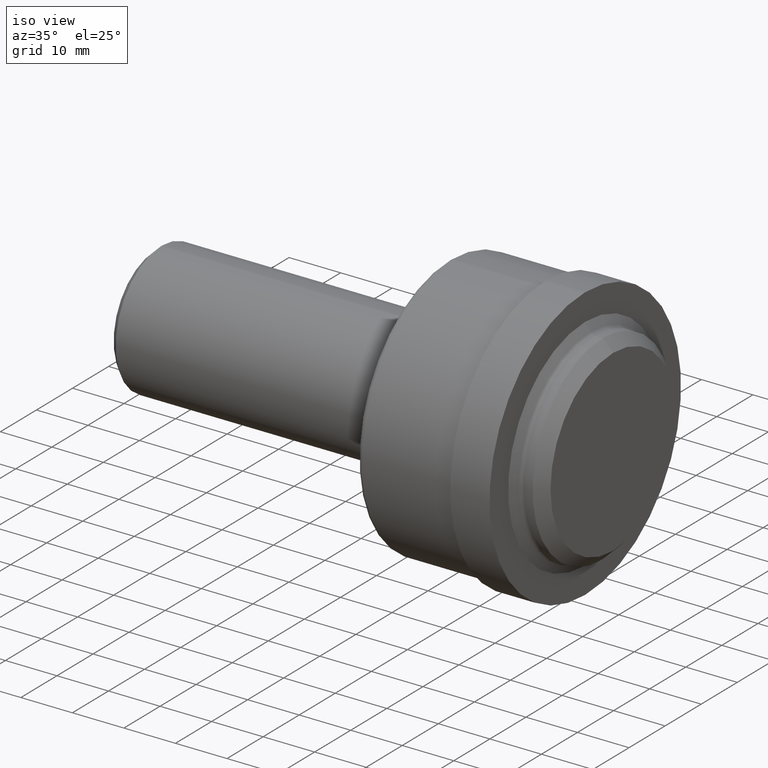
[diagram: clean part render]
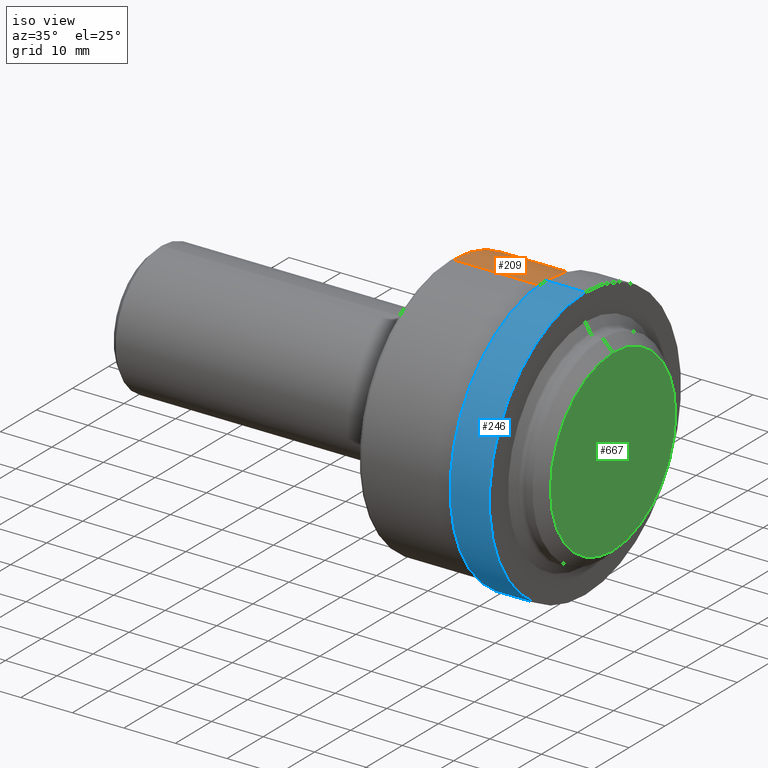
[diagram: same view with three faces highlighted in distinct colors, each labeled with its STEP entity id]
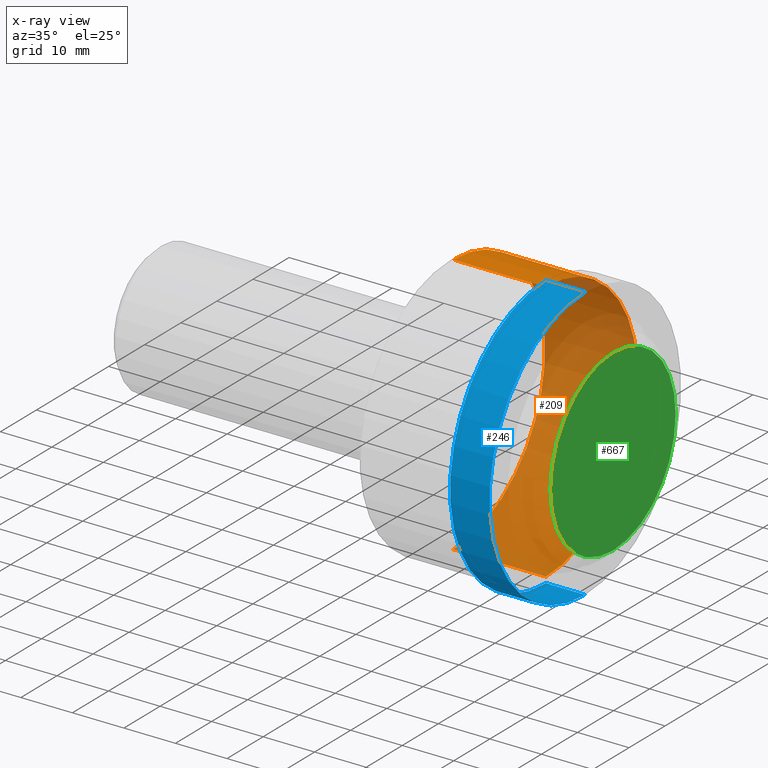
[diagram: x-ray of the same camera — body ghosted, the three highlighted faces saturated]
A machine part, iso view with three faces highlighted in distinct colors.
The next image is the same camera in x-ray (body ghosted, the three faces saturated) — at least one of them is partly hidden behind the body in this view.
Their STEP definitions:

[orange] entity #209 — the highlighted cylindrical surface (partial cylindrical patch) has radius 25.4 mm, axis along (-1, -0, -0).
#30 = DIRECTION ( 'NONE',  ( -1.000000000000000000, -0.000000000000000000, -0.000000000000000000 ) ) ;
#38 = CARTESIAN_POINT ( 'NONE',  ( 2.279999999999999805, 0.000000000000000000, 0.000000000000000000 ) ) ;
#50 = DIRECTION ( 'NONE',  ( -1.000000000000000000, -0.000000000000000000, -0.000000000000000000 ) ) ;
#90 = EDGE_CURVE ( 'NONE', #625, #474, #484, .T. ) ;
#103 = CARTESIAN_POINT ( 'NONE',  ( 0.000000000000000000, 0.000000000000000000, 0.000000000000000000 ) ) ;
#111 = CARTESIAN_POINT ( 'NONE',  ( 2.986999999999999655, 0.000000000000000000, 1.000000000000000000 ) ) ;
#119 = AXIS2_PLACEMENT_3D ( 'NONE', #384, #546, #333 ) ;
#191 = CARTESIAN_POINT ( 'NONE',  ( 2.986999999999999655, 1.224646799147353207E-16, -1.000000000000000000 ) ) ;
#209 = ADVANCED_FACE ( 'NONE', ( #595 ), #389, .T. ) ;
#240 = ORIENTED_EDGE ( 'NONE', *, *, #664, .T. ) ;
#241 = CIRCLE ( 'NONE', #452, 1.000000000000000000 ) ;
#242 = EDGE_CURVE ( 'NONE', #625, #479, #339, .T. ) ;
#302 = ORIENTED_EDGE ( 'NONE', *, *, #90, .F. ) ;
#326 = DIRECTION ( 'NONE',  ( -1.000000000000000000, -0.000000000000000000, -0.000000000000000000 ) ) ;
#332 = LINE ( 'NONE', #598, #447 ) ;
#333 = DIRECTION ( 'NONE',  ( 0.000000000000000000, 0.000000000000000000, 1.000000000000000000 ) ) ;
#339 = CIRCLE ( 'NONE', #119, 1.000000000000000000 ) ;
#363 = ORIENTED_EDGE ( 'NONE', *, *, #242, .T. ) ;
#384 = CARTESIAN_POINT ( 'NONE',  ( 2.986999999999999655, 0.000000000000000000, 0.000000000000000000 ) ) ;
#389 = CYLINDRICAL_SURFACE ( 'NONE', #465, 1.000000000000000000 ) ;
#415 = CARTESIAN_POINT ( 'NONE',  ( 2.279999999999999805, 0.000000000000000000, 1.000000000000000000 ) ) ;
#447 = VECTOR ( 'NONE', #550, 39.37007874015748143 ) ;
#452 = AXIS2_PLACEMENT_3D ( 'NONE', #38, #50, #717 ) ;
#462 = VECTOR ( 'NONE', #30, 39.37007874015748143 ) ;
#465 = AXIS2_PLACEMENT_3D ( 'NONE', #103, #326, #542 ) ;
#474 = VERTEX_POINT ( 'NONE', #415 ) ;
#479 = VERTEX_POINT ( 'NONE', #191 ) ;
#484 = LINE ( 'NONE', #533, #462 ) ;
#512 = EDGE_LOOP ( 'NONE', ( #363, #240, #679, #302 ) ) ;
#533 = CARTESIAN_POINT ( 'NONE',  ( 0.000000000000000000, 0.000000000000000000, 1.000000000000000000 ) ) ;
#542 = DIRECTION ( 'NONE',  ( 0.000000000000000000, 0.000000000000000000, 1.000000000000000000 ) ) ;
#546 = DIRECTION ( 'NONE',  ( -1.000000000000000000, -0.000000000000000000, -0.000000000000000000 ) ) ;
#550 = DIRECTION ( 'NONE',  ( -1.000000000000000000, -0.000000000000000000, -0.000000000000000000 ) ) ;
#557 = CARTESIAN_POINT ( 'NONE',  ( 2.279999999999999805, 1.224646799147353207E-16, -1.000000000000000000 ) ) ;
#560 = EDGE_CURVE ( 'NONE', #474, #697, #241, .T. ) ;
#595 = FACE_OUTER_BOUND ( 'NONE', #512, .T. ) ;
#598 = CARTESIAN_POINT ( 'NONE',  ( 0.000000000000000000, 1.224646799147353207E-16, -1.000000000000000000 ) ) ;
#625 = VERTEX_POINT ( 'NONE', #111 ) ;
#664 = EDGE_CURVE ( 'NONE', #479, #697, #332, .T. ) ;
#679 = ORIENTED_EDGE ( 'NONE', *, *, #560, .F. ) ;
#697 = VERTEX_POINT ( 'NONE', #557 ) ;
#717 = DIRECTION ( 'NONE',  ( 0.000000000000000000, 0.000000000000000000, 1.000000000000000000 ) ) ;

[blue] entity #246 — the highlighted cylindrical surface (partial cylindrical patch) has radius 26.543 mm, axis along (-1, -0, -0).
#5 = ORIENTED_EDGE ( 'NONE', *, *, #406, .T. ) ;
#19 = EDGE_LOOP ( 'NONE', ( #578, #5, #367, #374 ) ) ;
#26 = DIRECTION ( 'NONE',  ( -1.000000000000000000, -0.000000000000000000, -0.000000000000000000 ) ) ;
#61 = EDGE_CURVE ( 'NONE', #402, #570, #229, .T. ) ;
#81 = VECTOR ( 'NONE', #665, 39.37007874015748143 ) ;
#88 = CARTESIAN_POINT ( 'NONE',  ( 2.986999999999999655, 0.000000000000000000, 0.000000000000000000 ) ) ;
#96 = AXIS2_PLACEMENT_3D ( 'NONE', #496, #715, #463 ) ;
#129 = CARTESIAN_POINT ( 'NONE',  ( 3.286999999999999478, 0.000000000000000000, 0.000000000000000000 ) ) ;
#140 = VERTEX_POINT ( 'NONE', #493 ) ;
#150 = CARTESIAN_POINT ( 'NONE',  ( 0.000000000000000000, 1.279755905108984103E-16, -1.044999999999999929 ) ) ;
#178 = EDGE_CURVE ( 'NONE', #369, #570, #499, .T. ) ;
#222 = CARTESIAN_POINT ( 'NONE',  ( 2.986999999999999655, 0.000000000000000000, 1.044999999999999929 ) ) ;
#229 = CIRCLE ( 'NONE', #328, 1.044999999999999929 ) ;
#237 = DIRECTION ( 'NONE',  ( 0.000000000000000000, 0.000000000000000000, 1.000000000000000000 ) ) ;
#246 = ADVANCED_FACE ( 'NONE', ( #549 ), #274, .T. ) ;
#274 = CYLINDRICAL_SURFACE ( 'NONE', #96, 1.044999999999999929 ) ;
#310 = DIRECTION ( 'NONE',  ( -1.000000000000000000, -0.000000000000000000, -0.000000000000000000 ) ) ;
#328 = AXIS2_PLACEMENT_3D ( 'NONE', #88, #310, #427 ) ;
#334 = CIRCLE ( 'NONE', #347, 1.044999999999999929 ) ;
#347 = AXIS2_PLACEMENT_3D ( 'NONE', #129, #353, #237 ) ;
#353 = DIRECTION ( 'NONE',  ( -1.000000000000000000, -0.000000000000000000, -0.000000000000000000 ) ) ;
#367 = ORIENTED_EDGE ( 'NONE', *, *, #178, .T. ) ;
#369 = VERTEX_POINT ( 'NONE', #566 ) ;
#374 = ORIENTED_EDGE ( 'NONE', *, *, #61, .F. ) ;
#392 = VECTOR ( 'NONE', #26, 39.37007874015748143 ) ;
#402 = VERTEX_POINT ( 'NONE', #568 ) ;
#406 = EDGE_CURVE ( 'NONE', #140, #369, #334, .T. ) ;
#427 = DIRECTION ( 'NONE',  ( 0.000000000000000000, 0.000000000000000000, 1.000000000000000000 ) ) ;
#429 = CARTESIAN_POINT ( 'NONE',  ( 0.000000000000000000, 0.000000000000000000, 1.044999999999999929 ) ) ;
#463 = DIRECTION ( 'NONE',  ( 0.000000000000000000, 0.000000000000000000, 1.000000000000000000 ) ) ;
#468 = LINE ( 'NONE', #150, #392 ) ;
#485 = EDGE_CURVE ( 'NONE', #140, #402, #468, .T. ) ;
#493 = CARTESIAN_POINT ( 'NONE',  ( 3.286999999999999478, 1.279755905108984103E-16, -1.044999999999999929 ) ) ;
#496 = CARTESIAN_POINT ( 'NONE',  ( 0.000000000000000000, 0.000000000000000000, 0.000000000000000000 ) ) ;
#499 = LINE ( 'NONE', #429, #81 ) ;
#549 = FACE_OUTER_BOUND ( 'NONE', #19, .T. ) ;
#566 = CARTESIAN_POINT ( 'NONE',  ( 3.286999999999999478, 0.000000000000000000, 1.044999999999999929 ) ) ;
#568 = CARTESIAN_POINT ( 'NONE',  ( 2.986999999999999655, 1.279755905108984103E-16, -1.044999999999999929 ) ) ;
#570 = VERTEX_POINT ( 'NONE', #222 ) ;
#578 = ORIENTED_EDGE ( 'NONE', *, *, #485, .F. ) ;
#665 = DIRECTION ( 'NONE',  ( -1.000000000000000000, -0.000000000000000000, -0.000000000000000000 ) ) ;
#715 = DIRECTION ( 'NONE',  ( -1.000000000000000000, -0.000000000000000000, -0.000000000000000000 ) ) ;

[green] entity #667 — the highlighted planar face has unit normal (-1, 0, -0).
#3 = CARTESIAN_POINT ( 'NONE',  ( 3.500000000000000000, 8.855421004634508319E-17, -0.6830999999999995964 ) ) ;
#36 = DIRECTION ( 'NONE',  ( -1.000000000000000000, -0.000000000000000000, -0.000000000000000000 ) ) ;
#43 = CARTESIAN_POINT ( 'NONE',  ( 3.500000000000000000, 0.6830999999999995964, 0.000000000000000000 ) ) ;
#49 = EDGE_CURVE ( 'NONE', #399, #629, #288, .T. ) ;
#78 = ORIENTED_EDGE ( 'NONE', *, *, #351, .F. ) ;
#105 = FACE_OUTER_BOUND ( 'NONE', #134, .T. ) ;
#134 = EDGE_LOOP ( 'NONE', ( #78, #416 ) ) ;
#152 = DIRECTION ( 'NONE',  ( 0.000000000000000000, 0.000000000000000000, 1.000000000000000000 ) ) ;
#195 = AXIS2_PLACEMENT_3D ( 'NONE', #43, #270, #273 ) ;
#268 = AXIS2_PLACEMENT_3D ( 'NONE', #668, #671, #297 ) ;
#270 = DIRECTION ( 'NONE',  ( -1.000000000000000000, 0.000000000000000000, -0.000000000000000000 ) ) ;
#273 = DIRECTION ( 'NONE',  ( -0.000000000000000000, 0.000000000000000000, 1.000000000000000000 ) ) ;
#288 = CIRCLE ( 'NONE', #648, 0.6830999999999995964 ) ;
#297 = DIRECTION ( 'NONE',  ( 0.000000000000000000, 0.000000000000000000, 1.000000000000000000 ) ) ;
#351 = EDGE_CURVE ( 'NONE', #629, #399, #397, .T. ) ;
#397 = CIRCLE ( 'NONE', #268, 0.6830999999999995964 ) ;
#399 = VERTEX_POINT ( 'NONE', #3 ) ;
#416 = ORIENTED_EDGE ( 'NONE', *, *, #49, .F. ) ;
#545 = PLANE ( 'NONE',  #195 ) ;
#579 = CARTESIAN_POINT ( 'NONE',  ( 3.500000000000000000, 0.000000000000000000, 0.000000000000000000 ) ) ;
#629 = VERTEX_POINT ( 'NONE', #703 ) ;
#648 = AXIS2_PLACEMENT_3D ( 'NONE', #579, #36, #152 ) ;
#667 = ADVANCED_FACE ( 'NONE', ( #105 ), #545, .F. ) ;
#668 = CARTESIAN_POINT ( 'NONE',  ( 3.500000000000000000, 0.000000000000000000, 0.000000000000000000 ) ) ;
#671 = DIRECTION ( 'NONE',  ( -1.000000000000000000, -0.000000000000000000, -0.000000000000000000 ) ) ;
#703 = CARTESIAN_POINT ( 'NONE',  ( 3.500000000000000000, 0.000000000000000000, 0.6830999999999995964 ) ) ;